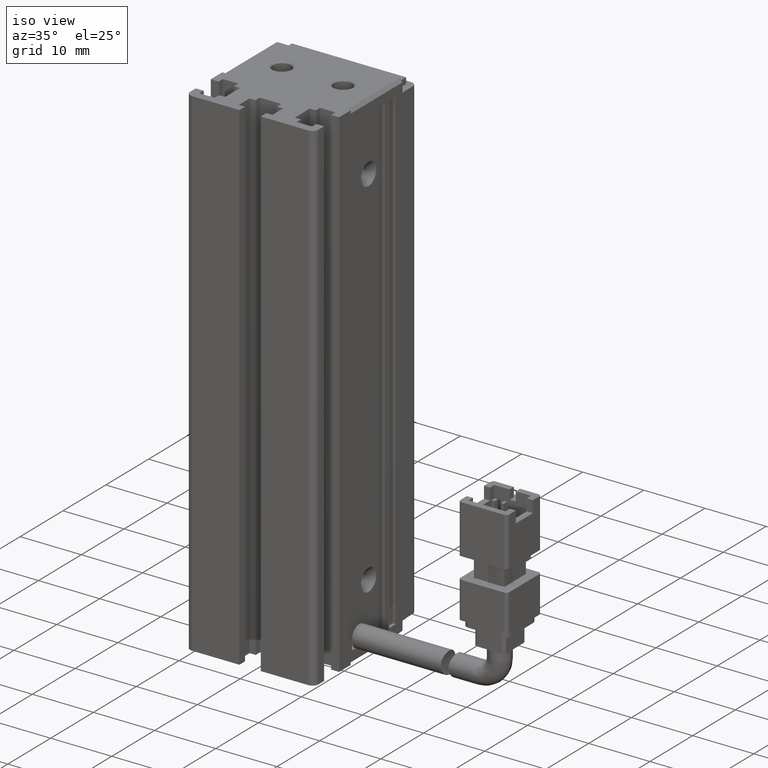
[diagram: clean part render]
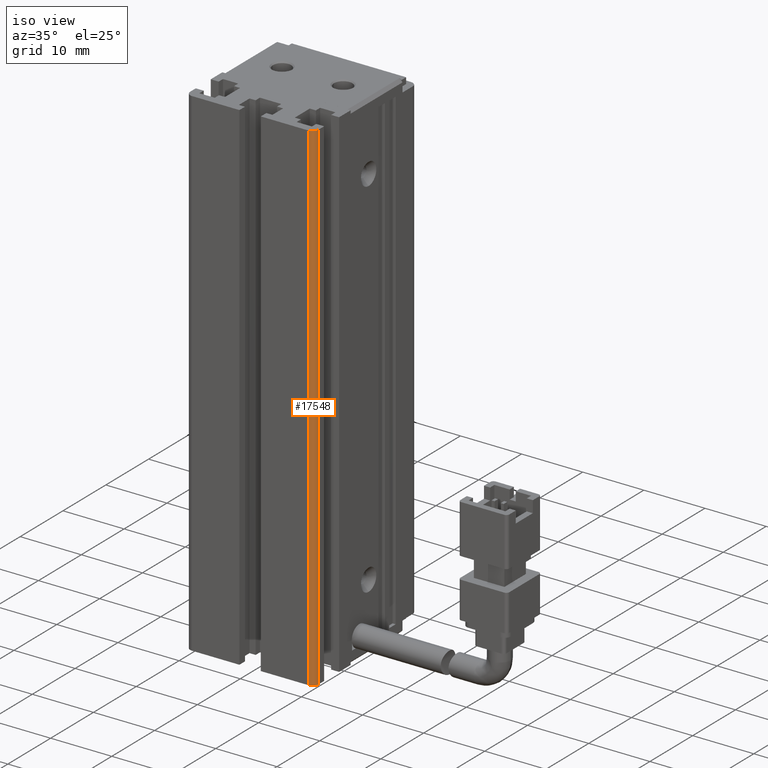
[diagram: same view with one face highlighted and labeled with its STEP entity id]
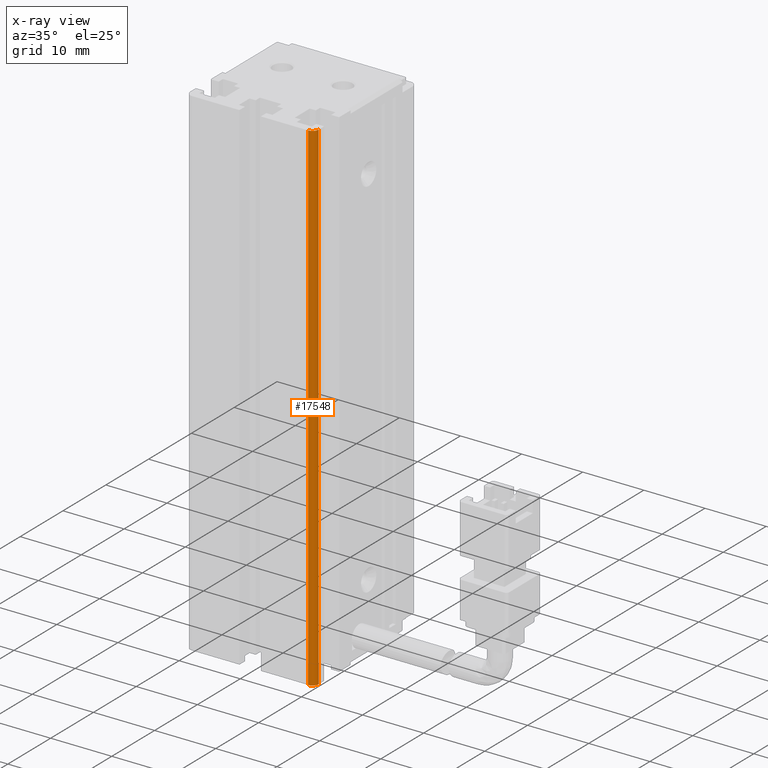
[diagram: x-ray of the same camera — body ghosted, the highlighted face saturated]
A machine part, iso view. The second image highlights one B-rep face of the part: STEP entity #17548.
The next image is the same camera in x-ray: the body ghosted, the highlighted face saturated — about 0% of this face is hidden behind the body in this view.
In plain terms, the highlighted cylindrical surface (edge-blend (fillet) strip) has radius 1 mm, axis along (0, 0, -1).
Its self-contained STEP definition (entity closure, byte-faithful):
#306 = DIRECTION ( 'NONE',  ( -0.0000000000000000000, -0.0000000000000000000, -1.000000000000000000 ) ) ;
#1637 = CARTESIAN_POINT ( 'NONE',  ( 51.42537974683541800, 11.99073232304837000, -74.00000000000001400 ) ) ;
#1852 = EDGE_CURVE ( 'NONE', #9274, #7512, #16614, .T. ) ;
#4040 = EDGE_LOOP ( 'NONE', ( #21115, #5811, #5931, #14353 ) ) ;
#4125 = DIRECTION ( 'NONE',  ( -1.000000000000000000, 0.0000000000000000000, 0.0000000000000000000 ) ) ;
#5417 = DIRECTION ( 'NONE',  ( 0.0000000000000000000, 0.0000000000000000000, -1.000000000000000000 ) ) ;
#5811 = ORIENTED_EDGE ( 'NONE', *, *, #22480, .T. ) ;
#5931 = ORIENTED_EDGE ( 'NONE', *, *, #21595, .T. ) ;
#7068 = AXIS2_PLACEMENT_3D ( 'NONE', #17395, #5417, #7828 ) ;
#7512 = VERTEX_POINT ( 'NONE', #1637 ) ;
#7828 = DIRECTION ( 'NONE',  ( -1.000000000000000000, 0.0000000000000000000, 0.0000000000000000000 ) ) ;
#9065 = DIRECTION ( 'NONE',  ( -1.000000000000000000, 0.0000000000000000000, 0.0000000000000000000 ) ) ;
#9274 = VERTEX_POINT ( 'NONE', #18394 ) ;
#11013 = AXIS2_PLACEMENT_3D ( 'NONE', #13476, #15814, #4125 ) ;
#11990 = EDGE_CURVE ( 'NONE', #7512, #26067, #26274, .T. ) ;
#13476 = CARTESIAN_POINT ( 'NONE',  ( 50.42537974683541800, 11.99073232304837000, -156.0000000000000000 ) ) ;
#14353 = ORIENTED_EDGE ( 'NONE', *, *, #1852, .T. ) ;
#15105 = CARTESIAN_POINT ( 'NONE',  ( 50.42537974683541800, 10.99073232304837000, -74.00000000000001400 ) ) ;
#15252 = CARTESIAN_POINT ( 'NONE',  ( 51.42537974683541800, 11.99073232304837000, -74.00000000000001400 ) ) ;
#15279 = FACE_OUTER_BOUND ( 'NONE', #4040, .T. ) ;
#15497 = VECTOR ( 'NONE', #20696, 1000.000000000000000 ) ;
#15814 = DIRECTION ( 'NONE',  ( -0.0000000000000000000, -0.0000000000000000000, 1.000000000000000000 ) ) ;
#16234 = CARTESIAN_POINT ( 'NONE',  ( 50.42537974683541800, 10.99073232304837000, -74.00000000000001400 ) ) ;
#16614 = LINE ( 'NONE', #15252, #15497 ) ;
#17041 = LINE ( 'NONE', #16234, #26047 ) ;
#17395 = CARTESIAN_POINT ( 'NONE',  ( 50.42537974683541800, 11.99073232304837000, -74.00000000000001400 ) ) ;
#17548 = ADVANCED_FACE ( 'NONE', ( #15279 ), #18920, .T. ) ;
#18394 = CARTESIAN_POINT ( 'NONE',  ( 51.42537974683541800, 11.99073232304837000, -156.0000000000000000 ) ) ;
#18920 = CYLINDRICAL_SURFACE ( 'NONE', #7068, 1.000000000000000900 ) ;
#19676 = CIRCLE ( 'NONE', #11013, 1.000000000000000900 ) ;
#20696 = DIRECTION ( 'NONE',  ( -0.0000000000000000000, -0.0000000000000000000, 1.000000000000000000 ) ) ;
#21115 = ORIENTED_EDGE ( 'NONE', *, *, #11990, .T. ) ;
#21595 = EDGE_CURVE ( 'NONE', #24359, #9274, #19676, .T. ) ;
#22477 = AXIS2_PLACEMENT_3D ( 'NONE', #22645, #29766, #9065 ) ;
#22480 = EDGE_CURVE ( 'NONE', #26067, #24359, #17041, .T. ) ;
#22645 = CARTESIAN_POINT ( 'NONE',  ( 50.42537974683541800, 11.99073232304837000, -74.00000000000001400 ) ) ;
#24359 = VERTEX_POINT ( 'NONE', #24491 ) ;
#24491 = CARTESIAN_POINT ( 'NONE',  ( 50.42537974683541800, 10.99073232304837000, -156.0000000000000000 ) ) ;
#26047 = VECTOR ( 'NONE', #306, 1000.000000000000000 ) ;
#26067 = VERTEX_POINT ( 'NONE', #15105 ) ;
#26274 = CIRCLE ( 'NONE', #22477, 1.000000000000000900 ) ;
#29766 = DIRECTION ( 'NONE',  ( 0.0000000000000000000, 0.0000000000000000000, -1.000000000000000000 ) ) ;